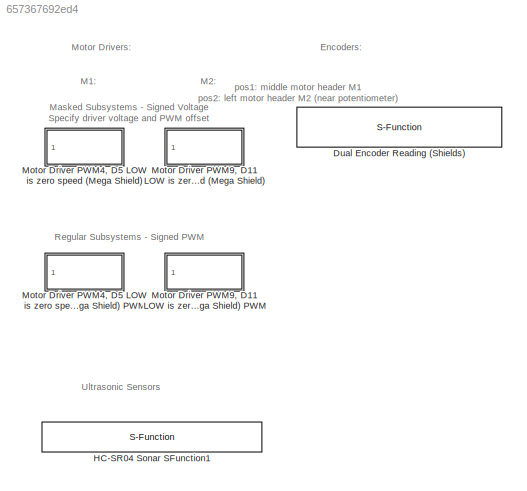
MODEL slx_657367692ed4
KIND library
CONFIG AbsTol = auto
CONFIG FixedStep = auto
CONFIG MaxStep = auto
CONFIG MinStep = auto
CONFIG RelTol = 1e-3
CONFIG SampleTimeConstraint = Unconstrained
CONFIG Solver = ode45
CONFIG SolverMode = Auto
CONFIG SolverName = ode45
CONFIG StartTime = 0.0
CONFIG StopTime = 10.0
BLOCK [S-Function] Dual Encoder Reading (Shields)
  CopyFcn = set_param(gcbh,'LinkStatus','none')
  FunctionName = sf_QuadEncoder_2_3_18_19
  InitFcn = try, set_param(gcb,'FunctionName','sf_QuadEncoder_2_3_18_19'), end
  OpenFcn = sfunctionwizard(gcbh)
  Parameters = uint8([0 1]),uint8([2 18]),uint8([3 19])
  Ports = [0, 2]
  PreSaveFcn = try, set_param(gcb,'FunctionName','sf_QuadEncoder_2_3_18_19'), end
  SFunctionModules = sf_QuadEncoder_2_3_18_19_wrapper
BLOCK [S-Function] HC-SR04 Sonar SFunction1
  CopyFcn = set_param(gcbh,'LinkStatus','none')
  FunctionName = sf_HCSR04_7_8
  InitFcn = try, set_param(gcb,'FunctionName','sf_HCSR04_7_8'), end
  OpenFcn = sfunctionwizard(gcbh)
  Ports = [0, 1]
  PreSaveFcn = try, set_param(gcb,'FunctionName','sf_HCSR04_7_8'), end
  SFunctionModules = sf_HCSR04_7_8_wrapper
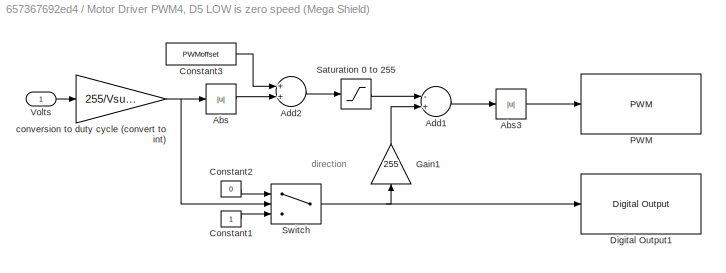
BLOCK [SubSystem] Motor Driver PWM4, D5 LOW is zero speed (Mega Shield)
  Ports = [1]
  RequestExecContextInheritance = off
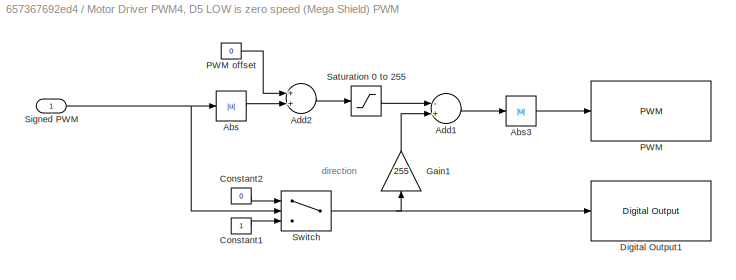
BLOCK [SubSystem] Motor Driver PWM4, D5 LOW is zero speed (Mega Shield) PWM
  Ports = [1]
  RequestExecContextInheritance = off
BLOCK [Abs] Motor Driver PWM4, D5 LOW is zero speed (Mega Shield) PWM/Abs
  SaturateOnIntegerOverflow = off
BLOCK [Abs] Motor Driver PWM4, D5 LOW is zero speed (Mega Shield) PWM/Abs3
  SaturateOnIntegerOverflow = off
BLOCK [Sum] Motor Driver PWM4, D5 LOW is zero speed (Mega Shield) PWM/Add1
  InputSameDT = off
  Inputs = -+
  OutDataTypeStr = Inherit: Inherit via internal rule
  Ports = [2, 1]
  SaturateOnIntegerOverflow = off
BLOCK [Sum] Motor Driver PWM4, D5 LOW is zero speed (Mega Shield) PWM/Add2
  InputSameDT = off
  OutDataTypeStr = Inherit: Inherit via internal rule
  Ports = [2, 1]
  SaturateOnIntegerOverflow = off
BLOCK [Constant] Motor Driver PWM4, D5 LOW is zero speed (Mega Shield) PWM/Constant1
BLOCK [Constant] Motor Driver PWM4, D5 LOW is zero speed (Mega Shield) PWM/Constant2
  Value = 0
BLOCK [Reference] Motor Driver PWM4, D5 LOW is zero speed (Mega Shield) PWM/Digital Output1  REF=arduinolib/Digital Output
  Ports = [1]
  SourceBlock = arduinolib/Digital Output
  SourceType = Arduino Digital Output
  pinNumber = 5
BLOCK [Gain] Motor Driver PWM4, D5 LOW is zero speed (Mega Shield) PWM/Gain1
  Gain = 255
  OutDataTypeStr = Inherit: Inherit via internal rule
  ParamDataTypeStr = Inherit: Inherit via internal rule
  SaturateOnIntegerOverflow = off
BLOCK [Reference] Motor Driver PWM4, D5 LOW is zero speed (Mega Shield) PWM/PWM  REF=arduinolib/PWM
  Ports = [1]
  SourceBlock = arduinolib/PWM
  SourceType = Arduino PWM
  pinNumber = 4
BLOCK [Constant] Motor Driver PWM4, D5 LOW is zero speed (Mega Shield) PWM/PWM offset
  Value = 0
BLOCK [Saturate] Motor Driver PWM4, D5 LOW is zero speed (Mega Shield) PWM/Saturation 0 to 255
  InputPortMap = u0
  LowerLimit = 0
  Ports = [1, 1]
  UpperLimit = 255
BLOCK [Inport] Motor Driver PWM4, D5 LOW is zero speed (Mega Shield) PWM/Signed PWM
  IconDisplay = Port number
BLOCK [Switch] Motor Driver PWM4, D5 LOW is zero speed (Mega Shield) PWM/Switch
  InputSameDT = off
  SaturateOnIntegerOverflow = off
BLOCK [Abs] Motor Driver PWM4, D5 LOW is zero speed (Mega Shield)/Abs
  SaturateOnIntegerOverflow = off
BLOCK [Abs] Motor Driver PWM4, D5 LOW is zero speed (Mega Shield)/Abs3
  SaturateOnIntegerOverflow = off
BLOCK [Sum] Motor Driver PWM4, D5 LOW is zero speed (Mega Shield)/Add1
  InputSameDT = off
  Inputs = -+
  OutDataTypeStr = Inherit: Inherit via internal rule
  Ports = [2, 1]
  SaturateOnIntegerOverflow = off
BLOCK [Sum] Motor Driver PWM4, D5 LOW is zero speed (Mega Shield)/Add2
  InputSameDT = off
  OutDataTypeStr = Inherit: Inherit via internal rule
  Ports = [2, 1]
  SaturateOnIntegerOverflow = off
BLOCK [Constant] Motor Driver PWM4, D5 LOW is zero speed (Mega Shield)/Constant1
BLOCK [Constant] Motor Driver PWM4, D5 LOW is zero speed (Mega Shield)/Constant2
  Value = 0
BLOCK [Constant] Motor Driver PWM4, D5 LOW is zero speed (Mega Shield)/Constant3
  Value = PWMoffset
BLOCK [Reference] Motor Driver PWM4, D5 LOW is zero speed (Mega Shield)/Digital Output1  REF=arduinolib/Digital Output
  Ports = [1]
  SourceBlock = arduinolib/Digital Output
  SourceType = Arduino Digital Output
  pinNumber = 5
BLOCK [Gain] Motor Driver PWM4, D5 LOW is zero speed (Mega Shield)/Gain1
  Gain = 255
  OutDataTypeStr = Inherit: Inherit via internal rule
  ParamDataTypeStr = Inherit: Inherit via internal rule
  SaturateOnIntegerOverflow = off
BLOCK [Reference] Motor Driver PWM4, D5 LOW is zero speed (Mega Shield)/PWM  REF=arduinolib/PWM
  Ports = [1]
  SourceBlock = arduinolib/PWM
  SourceType = Arduino PWM
  pinNumber = 4
BLOCK [Saturate] Motor Driver PWM4, D5 LOW is zero speed (Mega Shield)/Saturation 0 to 255
  InputPortMap = u0
  LowerLimit = 0
  Ports = [1, 1]
  UpperLimit = 255
BLOCK [Switch] Motor Driver PWM4, D5 LOW is zero speed (Mega Shield)/Switch
  InputSameDT = off
  SaturateOnIntegerOverflow = off
BLOCK [Inport] Motor Driver PWM4, D5 LOW is zero speed (Mega Shield)/Volts
  IconDisplay = Port number
BLOCK [Gain] Motor Driver PWM4, D5 LOW is zero speed (Mega Shield)/conversion to duty cycle (convert to int)
  Gain = 255/Vsupply
  OutDataTypeStr = int16
  ParamDataTypeStr = Inherit: Inherit via internal rule
  SaturateOnIntegerOverflow = off
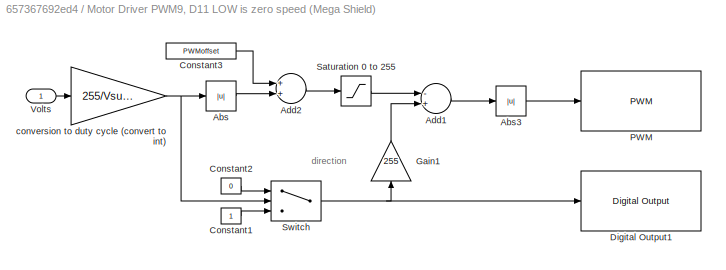
BLOCK [SubSystem] Motor Driver PWM9, D11 LOW is zero speed (Mega Shield)
  Ports = [1]
  RequestExecContextInheritance = off
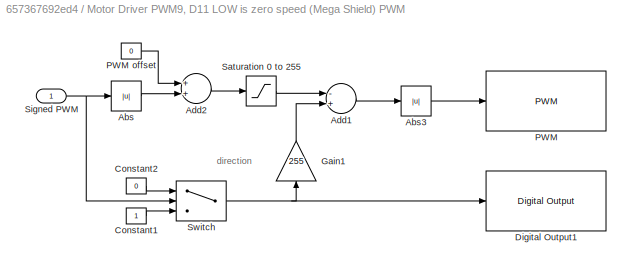
BLOCK [SubSystem] Motor Driver PWM9, D11 LOW is zero speed (Mega Shield) PWM
  Ports = [1]
  RequestExecContextInheritance = off
BLOCK [Abs] Motor Driver PWM9, D11 LOW is zero speed (Mega Shield) PWM/Abs
  SaturateOnIntegerOverflow = off
BLOCK [Abs] Motor Driver PWM9, D11 LOW is zero speed (Mega Shield) PWM/Abs3
  SaturateOnIntegerOverflow = off
BLOCK [Sum] Motor Driver PWM9, D11 LOW is zero speed (Mega Shield) PWM/Add1
  InputSameDT = off
  Inputs = -+
  OutDataTypeStr = Inherit: Inherit via internal rule
  Ports = [2, 1]
  SaturateOnIntegerOverflow = off
BLOCK [Sum] Motor Driver PWM9, D11 LOW is zero speed (Mega Shield) PWM/Add2
  InputSameDT = off
  OutDataTypeStr = Inherit: Inherit via internal rule
  Ports = [2, 1]
  SaturateOnIntegerOverflow = off
BLOCK [Constant] Motor Driver PWM9, D11 LOW is zero speed (Mega Shield) PWM/Constant1
BLOCK [Constant] Motor Driver PWM9, D11 LOW is zero speed (Mega Shield) PWM/Constant2
  Value = 0
BLOCK [Reference] Motor Driver PWM9, D11 LOW is zero speed (Mega Shield) PWM/Digital Output1  REF=arduinolib/Digital Output
  Ports = [1]
  SourceBlock = arduinolib/Digital Output
  SourceType = Arduino Digital Output
  pinNumber = 11
BLOCK [Gain] Motor Driver PWM9, D11 LOW is zero speed (Mega Shield) PWM/Gain1
  Gain = 255
  OutDataTypeStr = Inherit: Inherit via internal rule
  ParamDataTypeStr = Inherit: Inherit via internal rule
  SaturateOnIntegerOverflow = off
BLOCK [Reference] Motor Driver PWM9, D11 LOW is zero speed (Mega Shield) PWM/PWM  REF=arduinolib/PWM
  Ports = [1]
  SourceBlock = arduinolib/PWM
  SourceType = Arduino PWM
  pinNumber = 9
BLOCK [Constant] Motor Driver PWM9, D11 LOW is zero speed (Mega Shield) PWM/PWM offset
  Value = 0
BLOCK [Saturate] Motor Driver PWM9, D11 LOW is zero speed (Mega Shield) PWM/Saturation 0 to 255
  InputPortMap = u0
  LowerLimit = 0
  Ports = [1, 1]
  UpperLimit = 255
BLOCK [Inport] Motor Driver PWM9, D11 LOW is zero speed (Mega Shield) PWM/Signed PWM
  IconDisplay = Port number
BLOCK [Switch] Motor Driver PWM9, D11 LOW is zero speed (Mega Shield) PWM/Switch
  InputSameDT = off
  SaturateOnIntegerOverflow = off
BLOCK [Abs] Motor Driver PWM9, D11 LOW is zero speed (Mega Shield)/Abs
  SaturateOnIntegerOverflow = off
BLOCK [Abs] Motor Driver PWM9, D11 LOW is zero speed (Mega Shield)/Abs3
  SaturateOnIntegerOverflow = off
BLOCK [Sum] Motor Driver PWM9, D11 LOW is zero speed (Mega Shield)/Add1
  InputSameDT = off
  Inputs = -+
  OutDataTypeStr = Inherit: Inherit via internal rule
  Ports = [2, 1]
  SaturateOnIntegerOverflow = off
BLOCK [Sum] Motor Driver PWM9, D11 LOW is zero speed (Mega Shield)/Add2
  InputSameDT = off
  OutDataTypeStr = Inherit: Inherit via internal rule
  Ports = [2, 1]
  SaturateOnIntegerOverflow = off
BLOCK [Constant] Motor Driver PWM9, D11 LOW is zero speed (Mega Shield)/Constant1
BLOCK [Constant] Motor Driver PWM9, D11 LOW is zero speed (Mega Shield)/Constant2
  Value = 0
BLOCK [Constant] Motor Driver PWM9, D11 LOW is zero speed (Mega Shield)/Constant3
  Value = PWMoffset
BLOCK [Reference] Motor Driver PWM9, D11 LOW is zero speed (Mega Shield)/Digital Output1  REF=arduinolib/Digital Output
  Ports = [1]
  SourceBlock = arduinolib/Digital Output
  SourceType = Arduino Digital Output
  pinNumber = 11
BLOCK [Gain] Motor Driver PWM9, D11 LOW is zero speed (Mega Shield)/Gain1
  Gain = 255
  OutDataTypeStr = Inherit: Inherit via internal rule
  ParamDataTypeStr = Inherit: Inherit via internal rule
  SaturateOnIntegerOverflow = off
BLOCK [Reference] Motor Driver PWM9, D11 LOW is zero speed (Mega Shield)/PWM  REF=arduinolib/PWM
  Ports = [1]
  SourceBlock = arduinolib/PWM
  SourceType = Arduino PWM
  pinNumber = 9
BLOCK [Saturate] Motor Driver PWM9, D11 LOW is zero speed (Mega Shield)/Saturation 0 to 255
  InputPortMap = u0
  LowerLimit = 0
  Ports = [1, 1]
  UpperLimit = 255
BLOCK [Switch] Motor Driver PWM9, D11 LOW is zero speed (Mega Shield)/Switch
  InputSameDT = off
  SaturateOnIntegerOverflow = off
BLOCK [Inport] Motor Driver PWM9, D11 LOW is zero speed (Mega Shield)/Volts
  IconDisplay = Port number
BLOCK [Gain] Motor Driver PWM9, D11 LOW is zero speed (Mega Shield)/conversion to duty cycle (convert to int)
  Gain = 255/Vsupply
  OutDataTypeStr = int16
  ParamDataTypeStr = Inherit: Inherit via internal rule
  SaturateOnIntegerOverflow = off
ANNOTATION (root): Encoders:
ANNOTATION (root): M1:
ANNOTATION (root): M2:
ANNOTATION (root): Masked Subsystems - Signed Voltage Specify driver voltage and PWM offset
ANNOTATION (root): Motor Drivers:
ANNOTATION (root): Regular Subsystems - Signed PWM
ANNOTATION (root): Ultrasonic Sensors
ANNOTATION (root): pos1: middle motor header M1 pos2: left motor header M2 (near potentiometer)
ANNOTATION Motor Driver PWM4, D5 LOW is zero speed (Mega Shield): direction
ANNOTATION Motor Driver PWM4, D5 LOW is zero speed (Mega Shield) PWM: direction
ANNOTATION Motor Driver PWM9, D11 LOW is zero speed (Mega Shield): direction
ANNOTATION Motor Driver PWM9, D11 LOW is zero speed (Mega Shield) PWM: direction
LINE Motor Driver PWM4, D5 LOW is zero speed (Mega Shield) PWM/Abs3:1 -> Motor Driver PWM4, D5 LOW is zero speed (Mega Shield) PWM/PWM:1
LINE Motor Driver PWM4, D5 LOW is zero speed (Mega Shield) PWM/Abs:1 -> Motor Driver PWM4, D5 LOW is zero speed (Mega Shield) PWM/Add2:2
LINE Motor Driver PWM4, D5 LOW is zero speed (Mega Shield) PWM/Add1:1 -> Motor Driver PWM4, D5 LOW is zero speed (Mega Shield) PWM/Abs3:1
LINE Motor Driver PWM4, D5 LOW is zero speed (Mega Shield) PWM/Add2:1 -> Motor Driver PWM4, D5 LOW is zero speed (Mega Shield) PWM/Saturation 0 to 255:1
LINE Motor Driver PWM4, D5 LOW is zero speed (Mega Shield) PWM/Constant1:1 -> Motor Driver PWM4, D5 LOW is zero speed (Mega Shield) PWM/Switch:3
LINE Motor Driver PWM4, D5 LOW is zero speed (Mega Shield) PWM/Constant2:1 -> Motor Driver PWM4, D5 LOW is zero speed (Mega Shield) PWM/Switch:1
LINE Motor Driver PWM4, D5 LOW is zero speed (Mega Shield) PWM/Gain1:1 -> Motor Driver PWM4, D5 LOW is zero speed (Mega Shield) PWM/Add1:2
LINE Motor Driver PWM4, D5 LOW is zero speed (Mega Shield) PWM/PWM offset:1 -> Motor Driver PWM4, D5 LOW is zero speed (Mega Shield) PWM/Add2:1
LINE Motor Driver PWM4, D5 LOW is zero speed (Mega Shield) PWM/Saturation 0 to 255:1 -> Motor Driver PWM4, D5 LOW is zero speed (Mega Shield) PWM/Add1:1
NET Motor Driver PWM4, D5 LOW is zero speed (Mega Shield) PWM/Signed PWM:1 -> Motor Driver PWM4, D5 LOW is zero speed (Mega Shield) PWM/Abs:1, Motor Driver PWM4, D5 LOW is zero speed (Mega Shield) PWM/Switch:2
NET Motor Driver PWM4, D5 LOW is zero speed (Mega Shield) PWM/Switch:1 -> Motor Driver PWM4, D5 LOW is zero speed (Mega Shield) PWM/Digital Output1:1, Motor Driver PWM4, D5 LOW is zero speed (Mega Shield) PWM/Gain1:1
LINE Motor Driver PWM4, D5 LOW is zero speed (Mega Shield)/Abs3:1 -> Motor Driver PWM4, D5 LOW is zero speed (Mega Shield)/PWM:1
LINE Motor Driver PWM4, D5 LOW is zero speed (Mega Shield)/Abs:1 -> Motor Driver PWM4, D5 LOW is zero speed (Mega Shield)/Add2:2
LINE Motor Driver PWM4, D5 LOW is zero speed (Mega Shield)/Add1:1 -> Motor Driver PWM4, D5 LOW is zero speed (Mega Shield)/Abs3:1
LINE Motor Driver PWM4, D5 LOW is zero speed (Mega Shield)/Add2:1 -> Motor Driver PWM4, D5 LOW is zero speed (Mega Shield)/Saturation 0 to 255:1
LINE Motor Driver PWM4, D5 LOW is zero speed (Mega Shield)/Constant1:1 -> Motor Driver PWM4, D5 LOW is zero speed (Mega Shield)/Switch:3
LINE Motor Driver PWM4, D5 LOW is zero speed (Mega Shield)/Constant2:1 -> Motor Driver PWM4, D5 LOW is zero speed (Mega Shield)/Switch:1
LINE Motor Driver PWM4, D5 LOW is zero speed (Mega Shield)/Constant3:1 -> Motor Driver PWM4, D5 LOW is zero speed (Mega Shield)/Add2:1
LINE Motor Driver PWM4, D5 LOW is zero speed (Mega Shield)/Gain1:1 -> Motor Driver PWM4, D5 LOW is zero speed (Mega Shield)/Add1:2
LINE Motor Driver PWM4, D5 LOW is zero speed (Mega Shield)/Saturation 0 to 255:1 -> Motor Driver PWM4, D5 LOW is zero speed (Mega Shield)/Add1:1
NET Motor Driver PWM4, D5 LOW is zero speed (Mega Shield)/Switch:1 -> Motor Driver PWM4, D5 LOW is zero speed (Mega Shield)/Digital Output1:1, Motor Driver PWM4, D5 LOW is zero speed (Mega Shield)/Gain1:1
LINE Motor Driver PWM4, D5 LOW is zero speed (Mega Shield)/Volts:1 -> Motor Driver PWM4, D5 LOW is zero speed (Mega Shield)/conversion to duty cycle (convert to int):1
NET Motor Driver PWM4, D5 LOW is zero speed (Mega Shield)/conversion to duty cycle (convert to int):1 -> Motor Driver PWM4, D5 LOW is zero speed (Mega Shield)/Abs:1, Motor Driver PWM4, D5 LOW is zero speed (Mega Shield)/Switch:2
LINE Motor Driver PWM9, D11 LOW is zero speed (Mega Shield) PWM/Abs3:1 -> Motor Driver PWM9, D11 LOW is zero speed (Mega Shield) PWM/PWM:1
LINE Motor Driver PWM9, D11 LOW is zero speed (Mega Shield) PWM/Abs:1 -> Motor Driver PWM9, D11 LOW is zero speed (Mega Shield) PWM/Add2:2
LINE Motor Driver PWM9, D11 LOW is zero speed (Mega Shield) PWM/Add1:1 -> Motor Driver PWM9, D11 LOW is zero speed (Mega Shield) PWM/Abs3:1
LINE Motor Driver PWM9, D11 LOW is zero speed (Mega Shield) PWM/Add2:1 -> Motor Driver PWM9, D11 LOW is zero speed (Mega Shield) PWM/Saturation 0 to 255:1
LINE Motor Driver PWM9, D11 LOW is zero speed (Mega Shield) PWM/Constant1:1 -> Motor Driver PWM9, D11 LOW is zero speed (Mega Shield) PWM/Switch:3
LINE Motor Driver PWM9, D11 LOW is zero speed (Mega Shield) PWM/Constant2:1 -> Motor Driver PWM9, D11 LOW is zero speed (Mega Shield) PWM/Switch:1
LINE Motor Driver PWM9, D11 LOW is zero speed (Mega Shield) PWM/Gain1:1 -> Motor Driver PWM9, D11 LOW is zero speed (Mega Shield) PWM/Add1:2
LINE Motor Driver PWM9, D11 LOW is zero speed (Mega Shield) PWM/PWM offset:1 -> Motor Driver PWM9, D11 LOW is zero speed (Mega Shield) PWM/Add2:1
LINE Motor Driver PWM9, D11 LOW is zero speed (Mega Shield) PWM/Saturation 0 to 255:1 -> Motor Driver PWM9, D11 LOW is zero speed (Mega Shield) PWM/Add1:1
NET Motor Driver PWM9, D11 LOW is zero speed (Mega Shield) PWM/Signed PWM:1 -> Motor Driver PWM9, D11 LOW is zero speed (Mega Shield) PWM/Abs:1, Motor Driver PWM9, D11 LOW is zero speed (Mega Shield) PWM/Switch:2
NET Motor Driver PWM9, D11 LOW is zero speed (Mega Shield) PWM/Switch:1 -> Motor Driver PWM9, D11 LOW is zero speed (Mega Shield) PWM/Digital Output1:1, Motor Driver PWM9, D11 LOW is zero speed (Mega Shield) PWM/Gain1:1
LINE Motor Driver PWM9, D11 LOW is zero speed (Mega Shield)/Abs3:1 -> Motor Driver PWM9, D11 LOW is zero speed (Mega Shield)/PWM:1
LINE Motor Driver PWM9, D11 LOW is zero speed (Mega Shield)/Abs:1 -> Motor Driver PWM9, D11 LOW is zero speed (Mega Shield)/Add2:2
LINE Motor Driver PWM9, D11 LOW is zero speed (Mega Shield)/Add1:1 -> Motor Driver PWM9, D11 LOW is zero speed (Mega Shield)/Abs3:1
LINE Motor Driver PWM9, D11 LOW is zero speed (Mega Shield)/Add2:1 -> Motor Driver PWM9, D11 LOW is zero speed (Mega Shield)/Saturation 0 to 255:1
LINE Motor Driver PWM9, D11 LOW is zero speed (Mega Shield)/Constant1:1 -> Motor Driver PWM9, D11 LOW is zero speed (Mega Shield)/Switch:3
LINE Motor Driver PWM9, D11 LOW is zero speed (Mega Shield)/Constant2:1 -> Motor Driver PWM9, D11 LOW is zero speed (Mega Shield)/Switch:1
LINE Motor Driver PWM9, D11 LOW is zero speed (Mega Shield)/Constant3:1 -> Motor Driver PWM9, D11 LOW is zero speed (Mega Shield)/Add2:1
LINE Motor Driver PWM9, D11 LOW is zero speed (Mega Shield)/Gain1:1 -> Motor Driver PWM9, D11 LOW is zero speed (Mega Shield)/Add1:2
LINE Motor Driver PWM9, D11 LOW is zero speed (Mega Shield)/Saturation 0 to 255:1 -> Motor Driver PWM9, D11 LOW is zero speed (Mega Shield)/Add1:1
NET Motor Driver PWM9, D11 LOW is zero speed (Mega Shield)/Switch:1 -> Motor Driver PWM9, D11 LOW is zero speed (Mega Shield)/Digital Output1:1, Motor Driver PWM9, D11 LOW is zero speed (Mega Shield)/Gain1:1
LINE Motor Driver PWM9, D11 LOW is zero speed (Mega Shield)/Volts:1 -> Motor Driver PWM9, D11 LOW is zero speed (Mega Shield)/conversion to duty cycle (convert to int):1
NET Motor Driver PWM9, D11 LOW is zero speed (Mega Shield)/conversion to duty cycle (convert to int):1 -> Motor Driver PWM9, D11 LOW is zero speed (Mega Shield)/Abs:1, Motor Driver PWM9, D11 LOW is zero speed (Mega Shield)/Switch:2
note: NET lines group one-source signal fan-out (src -> all destinations, sorted); 1:1 wires keep LINE
